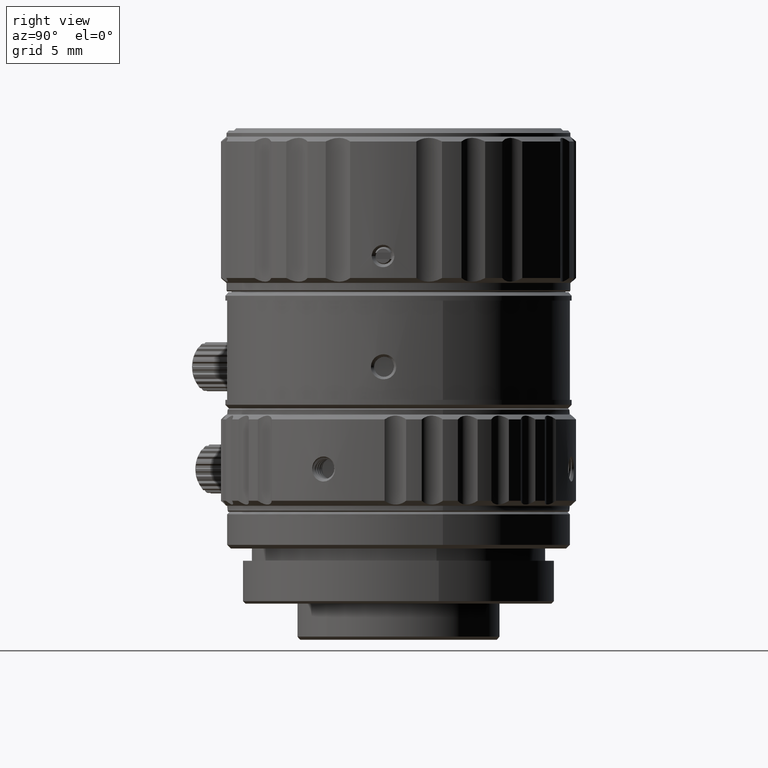
[diagram: clean part render]
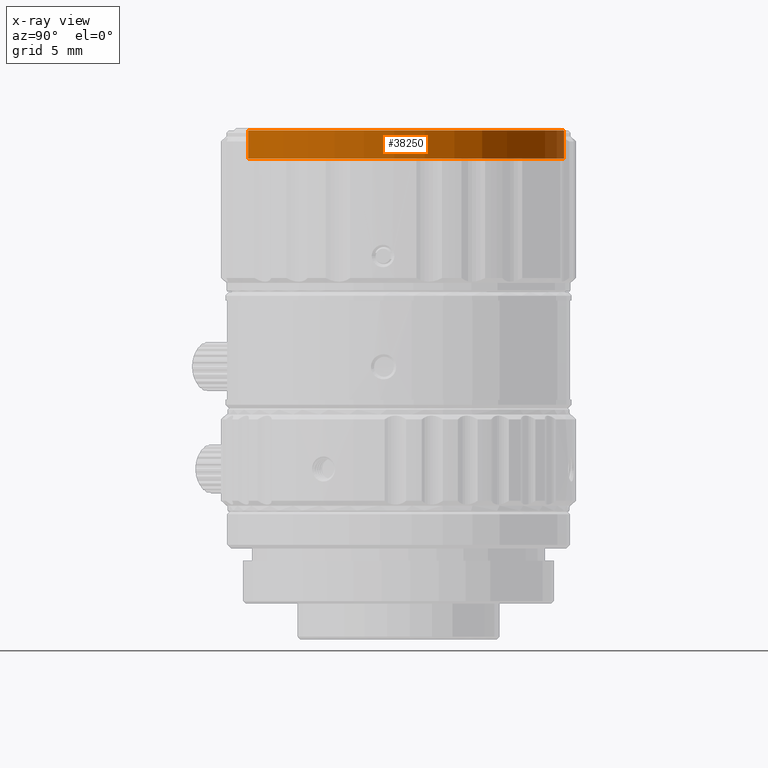
[diagram: x-ray — body ghosted, one internal face saturated and labeled with its STEP entity id]
A machine part, right view, then the same camera in x-ray: the body is ghosted and one INTERNAL B-rep face — a face not visible from any outside direction — is saturated and labeled: STEP entity #38250.
In plain terms, the highlighted cylindrical surface (partial cylindrical patch) has radius 13.55 mm, axis along (0, 0, -1).
Its self-contained STEP definition (entity closure, byte-faithful):
#407 = DIRECTION ( 'NONE',  ( 0.000000000000000000, 0.000000000000000000, 1.000000000000000000 ) ) ;
#528 = EDGE_CURVE ( 'NONE', #10713, #61433, #60665, .T. ) ;
#3149 = DIRECTION ( 'NONE',  ( -1.000000000000000000, 0.000000000000000000, 0.000000000000000000 ) ) ;
#3778 = DIRECTION ( 'NONE',  ( 0.000000000000000000, 0.000000000000000000, -1.000000000000000000 ) ) ;
#4226 = EDGE_CURVE ( 'NONE', #61433, #35729, #35105, .T. ) ;
#5592 = VERTEX_POINT ( 'NONE', #14089 ) ;
#5697 = LINE ( 'NONE', #50467, #38239 ) ;
#10362 = DIRECTION ( 'NONE',  ( 0.000000000000000000, 0.000000000000000000, -1.000000000000000000 ) ) ;
#10713 = VERTEX_POINT ( 'NONE', #20151 ) ;
#14089 = CARTESIAN_POINT ( 'NONE',  ( 5.726477446586732079, -12.28047051434597847, 25.62000004966100164 ) ) ;
#17520 = ORIENTED_EDGE ( 'NONE', *, *, #38551, .F. ) ;
#18774 = EDGE_LOOP ( 'NONE', ( #39777, #19375, #49317, #17520 ) ) ;
#18888 = CARTESIAN_POINT ( 'NONE',  ( -5.726477446584827824, 12.28047051434788450, 27.93000004966100036 ) ) ;
#19375 = ORIENTED_EDGE ( 'NONE', *, *, #4226, .T. ) ;
#20151 = CARTESIAN_POINT ( 'NONE',  ( 5.726477446586732079, -12.28047051434597847, 27.93000004966100036 ) ) ;
#24195 = FACE_OUTER_BOUND ( 'NONE', #18774, .T. ) ;
#24558 = VECTOR ( 'NONE', #44429, 1000.000000000000000 ) ;
#24797 = CARTESIAN_POINT ( 'NONE',  ( -5.726477446584827824, 12.28047051434788450, 25.62000004966100164 ) ) ;
#28782 = AXIS2_PLACEMENT_3D ( 'NONE', #43057, #3778, #3149 ) ;
#29033 = CARTESIAN_POINT ( 'NONE',  ( 9.526812944147000809E-13, 9.526812944147000809E-13, 28.57750004966100121 ) ) ;
#34687 = DIRECTION ( 'NONE',  ( 0.000000000000000000, 0.000000000000000000, -1.000000000000000000 ) ) ;
#34891 = DIRECTION ( 'NONE',  ( -0.4226182617406479824, 0.9063077870366740285, 0.000000000000000000 ) ) ;
#34912 = EDGE_CURVE ( 'NONE', #35729, #5592, #56582, .T. ) ;
#35105 = LINE ( 'NONE', #54769, #24558 ) ;
#35729 = VERTEX_POINT ( 'NONE', #24797 ) ;
#38239 = VECTOR ( 'NONE', #34687, 1000.000000000000000 ) ;
#38250 = ADVANCED_FACE ( 'NONE', ( #24195 ), #44474, .F. ) ;
#38551 = EDGE_CURVE ( 'NONE', #10713, #5592, #5697, .T. ) ;
#39777 = ORIENTED_EDGE ( 'NONE', *, *, #528, .T. ) ;
#43057 = CARTESIAN_POINT ( 'NONE',  ( 9.526812944147000809E-13, 9.526812944147000809E-13, 25.62000004966100164 ) ) ;
#43507 = DIRECTION ( 'NONE',  ( 0.4226182617406479824, -0.9063077870366740285, 0.000000000000000000 ) ) ;
#44429 = DIRECTION ( 'NONE',  ( 0.000000000000000000, 0.000000000000000000, -1.000000000000000000 ) ) ;
#44474 = CYLINDRICAL_SURFACE ( 'NONE', #49561, 13.54999999999999893 ) ;
#49317 = ORIENTED_EDGE ( 'NONE', *, *, #34912, .T. ) ;
#49561 = AXIS2_PLACEMENT_3D ( 'NONE', #29033, #10362, #43507 ) ;
#50467 = CARTESIAN_POINT ( 'NONE',  ( 5.726477446586732967, -12.28047051434598025, 28.57750004966100121 ) ) ;
#52419 = AXIS2_PLACEMENT_3D ( 'NONE', #54866, #407, #34891 ) ;
#54769 = CARTESIAN_POINT ( 'NONE',  ( -5.726477446584828712, 12.28047051434788628, 28.57750004966100121 ) ) ;
#54866 = CARTESIAN_POINT ( 'NONE',  ( 9.526812944147000809E-13, 9.526812944147000809E-13, 27.93000004966100036 ) ) ;
#56582 = CIRCLE ( 'NONE', #28782, 13.54999999999999893 ) ;
#60665 = CIRCLE ( 'NONE', #52419, 13.54999999999999893 ) ;
#61433 = VERTEX_POINT ( 'NONE', #18888 ) ;